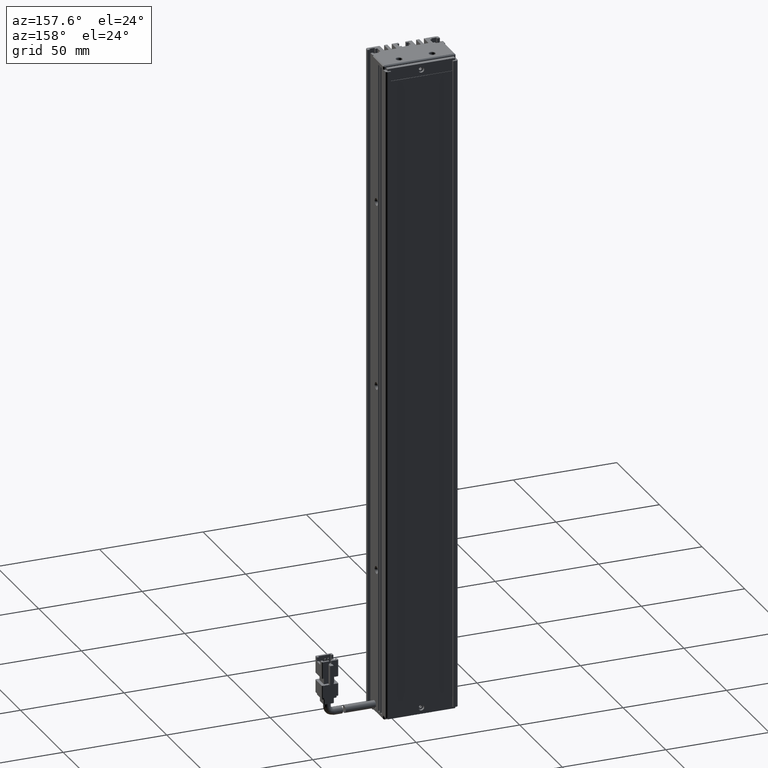
[diagram: clean part render]
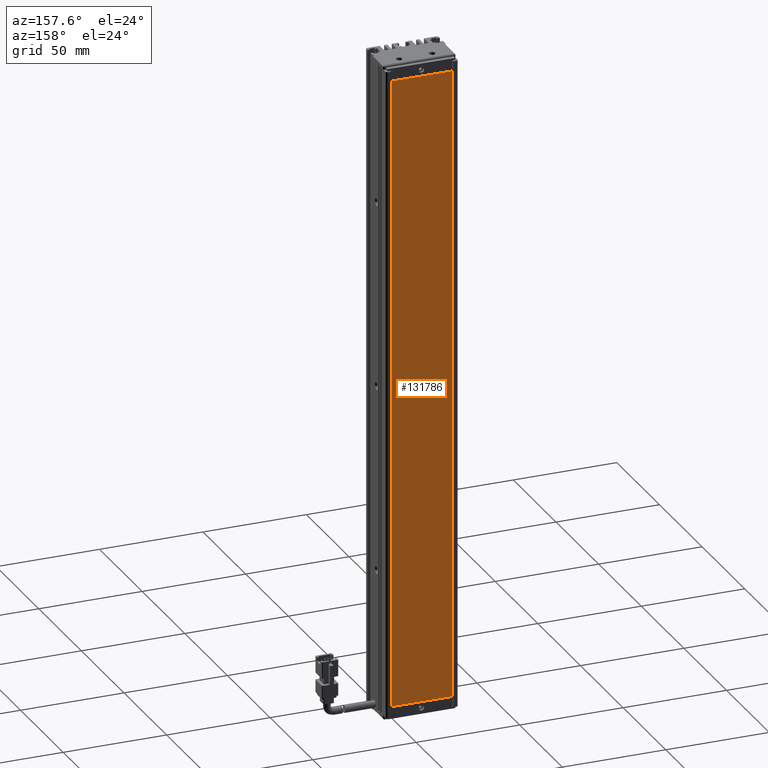
[diagram: same view with one face highlighted and labeled with its STEP entity id]
A machine part, auxiliary view. The second image highlights one B-rep face of the part: STEP entity #131786.
In plain terms, the highlighted planar face has unit normal (0, 1, 0).
Its self-contained STEP definition (entity closure, byte-faithful):
#17964 = DIRECTION ( 'NONE',  ( 1.247186812793782900E-016, 0.0000000000000000000, 1.000000000000000000 ) ) ;
#18875 = AXIS2_PLACEMENT_3D ( 'NONE', #110814, #57880, #129083 ) ;
#24680 = EDGE_CURVE ( 'NONE', #105248, #27659, #102502, .T. ) ;
#27659 = VERTEX_POINT ( 'NONE', #115092 ) ;
#28136 = ORIENTED_EDGE ( 'NONE', *, *, #79055, .T. ) ;
#33602 = ORIENTED_EDGE ( 'NONE', *, *, #24680, .T. ) ;
#40322 = CARTESIAN_POINT ( 'NONE',  ( 56.00470476028716900, 34.29073232304837400, -268.0000000000000000 ) ) ;
#40503 = CARTESIAN_POINT ( 'NONE',  ( 56.00470476028716900, 34.29073232304837400, -268.0000000000000000 ) ) ;
#42159 = DIRECTION ( 'NONE',  ( 1.000000000000000000, 0.0000000000000000000, 0.0000000000000000000 ) ) ;
#48200 = CARTESIAN_POINT ( 'NONE',  ( 26.00470476028716900, 34.29073232304837400, -268.0000000000000000 ) ) ;
#48651 = FACE_OUTER_BOUND ( 'NONE', #61311, .T. ) ;
#50324 = DIRECTION ( 'NONE',  ( -1.000000000000000000, 0.0000000000000000000, 0.0000000000000000000 ) ) ;
#56108 = CARTESIAN_POINT ( 'NONE',  ( 26.00470476028720800, 34.29073232304837400, 37.99999999999997900 ) ) ;
#57880 = DIRECTION ( 'NONE',  ( 0.0000000000000000000, 1.000000000000000000, 0.0000000000000000000 ) ) ;
#59452 = VECTOR ( 'NONE', #73943, 1000.000000000000000 ) ;
#61311 = EDGE_LOOP ( 'NONE', ( #28136, #33602, #93600, #92997 ) ) ;
#67760 = PLANE ( 'NONE',  #18875 ) ;
#69336 = CARTESIAN_POINT ( 'NONE',  ( 56.00470476028721100, 34.29073232304837400, 37.99999999999997900 ) ) ;
#69539 = LINE ( 'NONE', #95511, #120851 ) ;
#70666 = LINE ( 'NONE', #104883, #59452 ) ;
#71870 = VECTOR ( 'NONE', #50324, 1000.000000000000000 ) ;
#73356 = VERTEX_POINT ( 'NONE', #69336 ) ;
#73943 = DIRECTION ( 'NONE',  ( -2.721134864277344700E-016, 0.0000000000000000000, -1.000000000000000000 ) ) ;
#79055 = EDGE_CURVE ( 'NONE', #73356, #105248, #70666, .T. ) ;
#85307 = LINE ( 'NONE', #48200, #114269 ) ;
#92997 = ORIENTED_EDGE ( 'NONE', *, *, #106795, .T. ) ;
#93600 = ORIENTED_EDGE ( 'NONE', *, *, #126378, .T. ) ;
#95511 = CARTESIAN_POINT ( 'NONE',  ( 26.00470476028720800, 34.29073232304837400, 37.99999999999997900 ) ) ;
#102502 = LINE ( 'NONE', #40503, #71870 ) ;
#104883 = CARTESIAN_POINT ( 'NONE',  ( 56.00470476028721100, 34.29073232304837400, 37.99999999999997900 ) ) ;
#105248 = VERTEX_POINT ( 'NONE', #40322 ) ;
#106795 = EDGE_CURVE ( 'NONE', #111184, #73356, #69539, .T. ) ;
#110814 = CARTESIAN_POINT ( 'NONE',  ( 0.0000000000000000000, 34.29073232304837400, 0.0000000000000000000 ) ) ;
#111184 = VERTEX_POINT ( 'NONE', #56108 ) ;
#114269 = VECTOR ( 'NONE', #17964, 1000.000000000000000 ) ;
#115092 = CARTESIAN_POINT ( 'NONE',  ( 26.00470476028716900, 34.29073232304837400, -268.0000000000000000 ) ) ;
#120851 = VECTOR ( 'NONE', #42159, 1000.000000000000000 ) ;
#126378 = EDGE_CURVE ( 'NONE', #27659, #111184, #85307, .T. ) ;
#129083 = DIRECTION ( 'NONE',  ( 0.0000000000000000000, -0.0000000000000000000, 1.000000000000000000 ) ) ;
#131786 = ADVANCED_FACE ( 'NONE', ( #48651 ), #67760, .T. ) ;